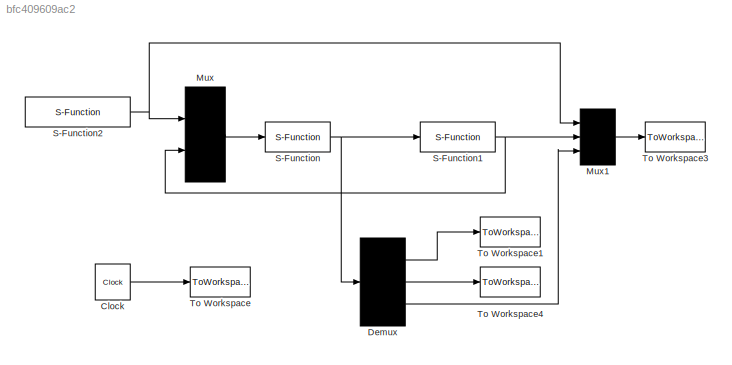
MODEL slx_bfc409609ac2
KIND model
CONFIG AbsTol = auto
CONFIG FixedStep = auto
CONFIG MaxStep = auto
CONFIG MinStep = auto
CONFIG RelTol = 1e-3
CONFIG SampleTimeConstraint = Unconstrained
CONFIG Solver = ode45
CONFIG SolverMode = Auto
CONFIG SolverName = ode45
CONFIG StartTime = 0.0
CONFIG StopTime = 40
BLOCK [Clock] Clock
  DisplayTime = on
BLOCK [Demux] Demux
  Outputs = 3
  Ports = [1, 3]
BLOCK [Mux] Mux
  Inputs = 2
  Ports = [2, 1]
BLOCK [Mux] Mux1
  Inputs = 3
  Ports = [3, 1]
BLOCK [S-Function] S-Function
  FunctionName = chap10_2ctrl
  Ports = [1, 1]
BLOCK [S-Function] S-Function1
  FunctionName = chap10_2plant
  Ports = [1, 1]
BLOCK [S-Function] S-Function2
  FunctionName = chap10_2input
  Ports = [0, 1]
BLOCK [ToWorkspace] To Workspace
  FixptAsFi = on
  MaxDataPoints = inf
  Ports = [1]
  SampleTime = -1
  Save2DSignal = 3-D array (concatenate along third dimension)
  VariableName = t
BLOCK [ToWorkspace] To Workspace1
  FixptAsFi = on
  MaxDataPoints = inf
  Ports = [1]
  SampleTime = -1
  Save2DSignal = 3-D array (concatenate along third dimension)
  VariableName = tol1
BLOCK [ToWorkspace] To Workspace3
  FixptAsFi = on
  MaxDataPoints = inf
  Ports = [1]
  SampleTime = -1
  Save2DSignal = 3-D array (concatenate along third dimension)
  VariableName = y
BLOCK [ToWorkspace] To Workspace4
  FixptAsFi = on
  MaxDataPoints = inf
  Ports = [1]
  SampleTime = -1
  Save2DSignal = 3-D array (concatenate along third dimension)
  VariableName = tol2
LINE Clock:1 -> To Workspace:1
LINE Demux:1 -> To Workspace1:1
LINE Demux:2 -> To Workspace4:1
LINE Demux:3 -> Mux1:3
LINE Mux1:1 -> To Workspace3:1
LINE Mux:1 -> S-Function:1
NET S-Function1:1 -> Mux1:2, Mux:2
NET S-Function2:1 -> Mux1:1, Mux:1
NET S-Function:1 -> Demux:1, S-Function1:1
note: NET lines group one-source signal fan-out (src -> all destinations, sorted); 1:1 wires keep LINE
